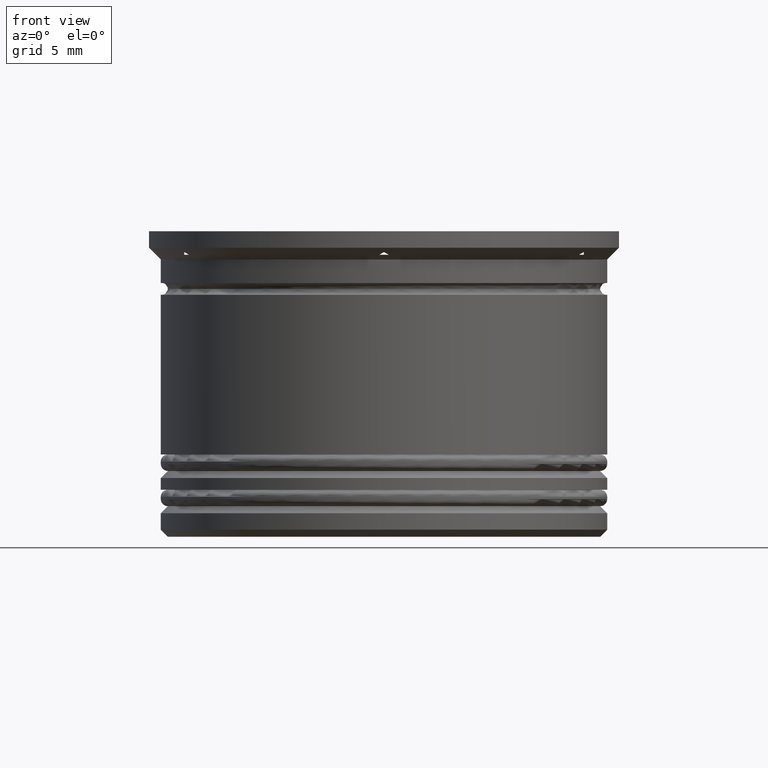
[diagram: clean part render]
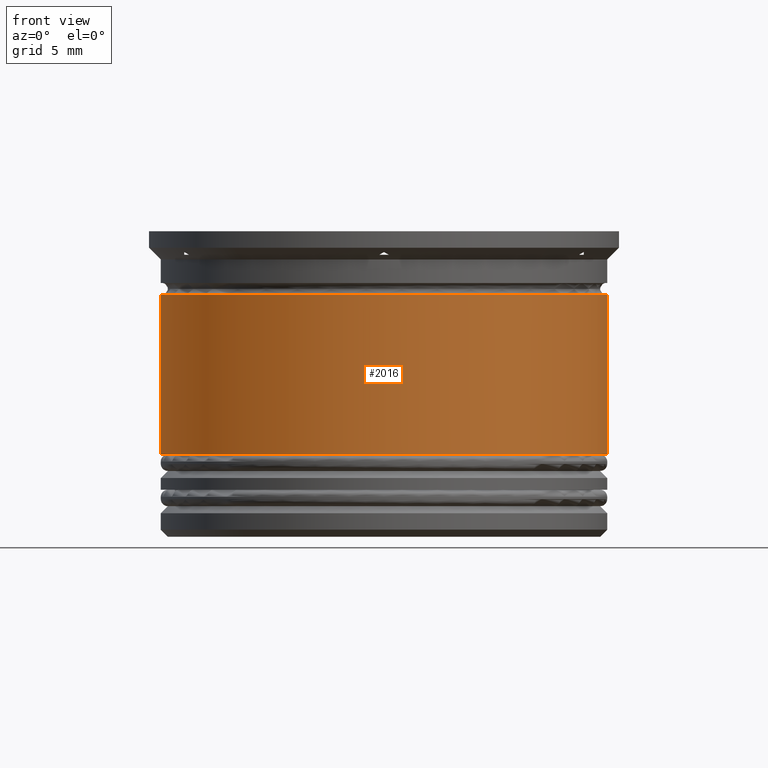
[diagram: same view with one face highlighted and labeled with its STEP entity id]
A machine part, front view. The second image highlights one B-rep face of the part: STEP entity #2016.
In plain terms, the highlighted cylindrical surface (partial cylindrical patch) has radius 9.5 mm, axis along (-0, -0, 1).
Its self-contained STEP definition (entity closure, byte-faithful):
#28 = VERTEX_POINT ( 'NONE', #1231 ) ;
#57 = CARTESIAN_POINT ( 'NONE',  ( 0.000000000000000000, 0.000000000000000000, 0.000000000000000000 ) ) ;
#111 = VECTOR ( 'NONE', #1531, 1000.000000000000000 ) ;
#199 = CARTESIAN_POINT ( 'NONE',  ( -9.500000000000000000, 1.163414459189985485E-15, 0.000000000000000000 ) ) ;
#269 = CIRCLE ( 'NONE', #407, 9.500000000000001776 ) ;
#291 = VERTEX_POINT ( 'NONE', #1167 ) ;
#387 = DIRECTION ( 'NONE',  ( -0.000000000000000000, -0.000000000000000000, 1.000000000000000000 ) ) ;
#401 = ORIENTED_EDGE ( 'NONE', *, *, #2080, .F. ) ;
#407 = AXIS2_PLACEMENT_3D ( 'NONE', #1874, #387, #1721 ) ;
#464 = CARTESIAN_POINT ( 'NONE',  ( -9.500000000000001776, 1.163414459189985682E-15, -9.500000000000000000 ) ) ;
#576 = ORIENTED_EDGE ( 'NONE', *, *, #1466, .F. ) ;
#626 = AXIS2_PLACEMENT_3D ( 'NONE', #57, #1711, #2048 ) ;
#818 = CIRCLE ( 'NONE', #1269, 9.499999999999998224 ) ;
#829 = CARTESIAN_POINT ( 'NONE',  ( 9.500000000000000000, 0.000000000000000000, 0.000000000000000000 ) ) ;
#836 = VERTEX_POINT ( 'NONE', #1178 ) ;
#844 = CYLINDRICAL_SURFACE ( 'NONE', #626, 9.500000000000000000 ) ;
#886 = EDGE_CURVE ( 'NONE', #291, #28, #1675, .T. ) ;
#1127 = ORIENTED_EDGE ( 'NONE', *, *, #2068, .T. ) ;
#1167 = CARTESIAN_POINT ( 'NONE',  ( 9.500000000000001776, 0.000000000000000000, -9.500000000000000000 ) ) ;
#1178 = CARTESIAN_POINT ( 'NONE',  ( -9.499999999999998224, 1.163414459189985485E-15, -2.700000000000000178 ) ) ;
#1231 = CARTESIAN_POINT ( 'NONE',  ( 9.499999999999998224, 0.000000000000000000, -2.700000000000000178 ) ) ;
#1252 = VERTEX_POINT ( 'NONE', #464 ) ;
#1269 = AXIS2_PLACEMENT_3D ( 'NONE', #1574, #1937, #1754 ) ;
#1466 = EDGE_CURVE ( 'NONE', #836, #28, #818, .T. ) ;
#1514 = VECTOR ( 'NONE', #1705, 1000.000000000000000 ) ;
#1531 = DIRECTION ( 'NONE',  ( -0.000000000000000000, -0.000000000000000000, 1.000000000000000000 ) ) ;
#1541 = LINE ( 'NONE', #199, #111 ) ;
#1574 = CARTESIAN_POINT ( 'NONE',  ( 0.000000000000000000, 0.000000000000000000, -2.700000000000000178 ) ) ;
#1605 = ORIENTED_EDGE ( 'NONE', *, *, #886, .T. ) ;
#1675 = LINE ( 'NONE', #829, #1514 ) ;
#1691 = FACE_OUTER_BOUND ( 'NONE', #2090, .T. ) ;
#1705 = DIRECTION ( 'NONE',  ( -0.000000000000000000, -0.000000000000000000, 1.000000000000000000 ) ) ;
#1711 = DIRECTION ( 'NONE',  ( -0.000000000000000000, -0.000000000000000000, 1.000000000000000000 ) ) ;
#1721 = DIRECTION ( 'NONE',  ( 1.000000000000000000, 0.000000000000000000, 0.000000000000000000 ) ) ;
#1754 = DIRECTION ( 'NONE',  ( 1.000000000000000000, 0.000000000000000000, 0.000000000000000000 ) ) ;
#1874 = CARTESIAN_POINT ( 'NONE',  ( 0.000000000000000000, 0.000000000000000000, -9.500000000000000000 ) ) ;
#1937 = DIRECTION ( 'NONE',  ( -0.000000000000000000, -0.000000000000000000, 1.000000000000000000 ) ) ;
#2016 = ADVANCED_FACE ( 'NONE', ( #1691 ), #844, .T. ) ;
#2048 = DIRECTION ( 'NONE',  ( 1.000000000000000000, 0.000000000000000000, 0.000000000000000000 ) ) ;
#2068 = EDGE_CURVE ( 'NONE', #1252, #291, #269, .T. ) ;
#2080 = EDGE_CURVE ( 'NONE', #1252, #836, #1541, .T. ) ;
#2090 = EDGE_LOOP ( 'NONE', ( #401, #1127, #1605, #576 ) ) ;